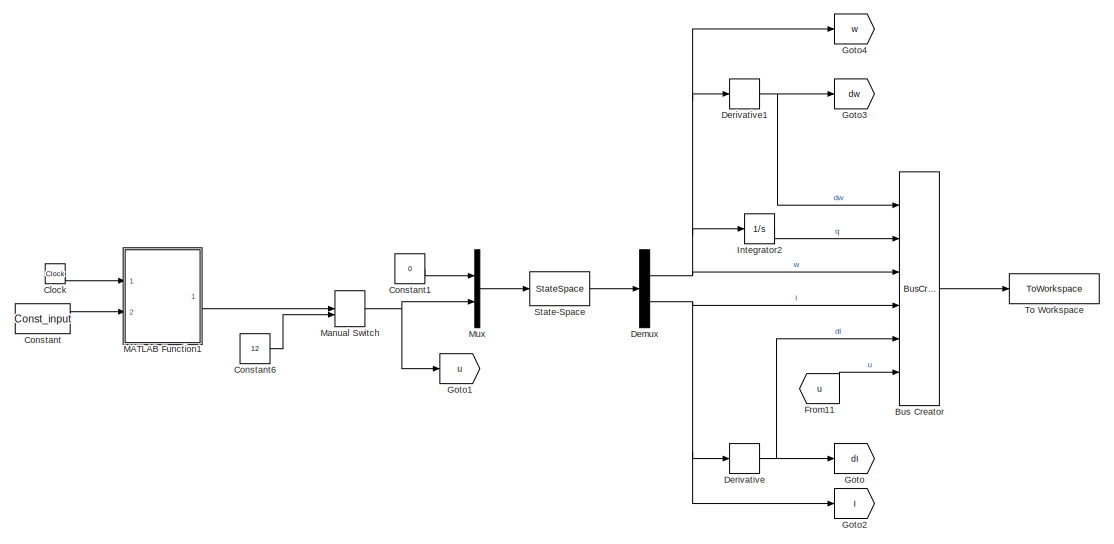
[diagram: root canvas - part 1/2, full width, top band]
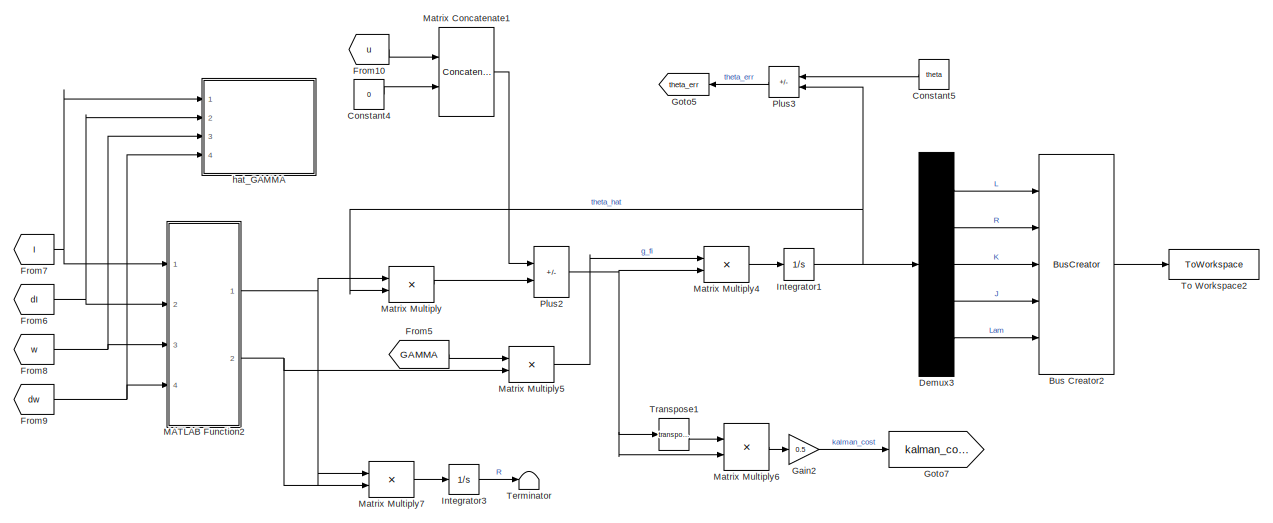
[diagram: root canvas - part 2/2, full width, bottom band]
MODEL slx_846c1dbf97cc
KIND model
CONFIG AbsTol = auto
CONFIG EnableMultiTasking = off
CONFIG FixedStep = auto
CONFIG MaxStep = auto
CONFIG MinStep = auto
CONFIG RelTol = 1e-3
CONFIG SampleTimeConstraint = Unconstrained
CONFIG SolverName = ode23t
CONFIG StartTime = 0.0
CONFIG StopTime = 20
BLOCK [BusCreator] Bus Creator
  DisplayOption = bar
  InheritFromInputs = on
  Inputs = 6
  Ports = [6, 1]
BLOCK [BusCreator] Bus Creator2
  DisplayOption = bar
  InheritFromInputs = on
  Inputs = 5
  Ports = [5, 1]
BLOCK [Clock] Clock
BLOCK [Constant] Constant
  Value = Const_input
BLOCK [Constant] Constant1
  Value = 0
BLOCK [Constant] Constant4
  Value = 0
BLOCK [Constant] Constant5
  NameLocation = top
  Value = theta
BLOCK [Constant] Constant6
  Value = 12
BLOCK [Demux] Demux
  Outputs = 2
  Ports = [1, 2]
BLOCK [Demux] Demux3
  Outputs = 5
  Ports = [1, 5]
BLOCK [Derivative] Derivative
BLOCK [Derivative] Derivative1
BLOCK [From] From10
  GotoTag = u
BLOCK [From] From11
  GotoTag = u
BLOCK [From] From5
  GotoTag = GAMMA
  TagVisibility = global
BLOCK [From] From6
  GotoTag = dI
BLOCK [From] From7
  GotoTag = I
BLOCK [From] From8
  GotoTag = w
BLOCK [From] From9
  GotoTag = dw
BLOCK [Gain] Gain2
  Gain = 0.5
BLOCK [Goto] Goto
  GotoTag = dI
BLOCK [Goto] Goto1
  GotoTag = u
BLOCK [Goto] Goto2
  GotoTag = I
BLOCK [Goto] Goto3
  GotoTag = dw
BLOCK [Goto] Goto4
  GotoTag = w
BLOCK [Goto] Goto5
  GotoTag = theta_err
  NameLocation = top
  TagVisibility = global
BLOCK [Goto] Goto7
  GotoTag = kalman_cost
  TagVisibility = global
BLOCK [Integrator] Integrator1
  InitialCondition = 1
  Ports = [1, 1]
BLOCK [Integrator] Integrator2
  Ports = [1, 1]
BLOCK [Integrator] Integrator3
  Ports = [1, 1]
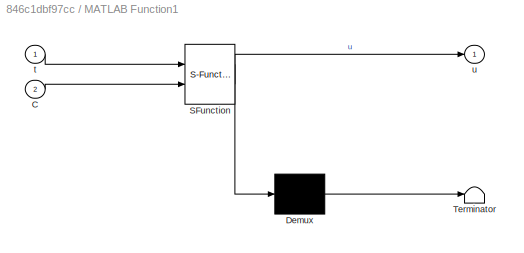
BLOCK [SubSystem] MATLAB Function1
  ErrorFcn = Stateflow.Translate.translate
  PermitHierarchicalResolution = ExplicitOnly
  Ports = [2, 1]
  RequestExecContextInheritance = off
  SFBlockType = MATLAB Function
  TreatAsAtomicUnit = on
BLOCK [Demux] MATLAB Function1/ Demux 
  Outputs = 1
  Ports = [1, 1]
BLOCK [S-Function] MATLAB Function1/ SFunction 
  EnableBusSupport = on
  FunctionName = sf_sfun
  PortCounts = [2 2]
  Ports = [2, 2]
  SFcnIsStateOwnerBlock = off
  SFunctionDeploymentMode = off
  Tag = Stateflow S-Function 2
BLOCK [Terminator] MATLAB Function1/ Terminator 
BLOCK [Inport] MATLAB Function1/C
  Port = 2
BLOCK [Inport] MATLAB Function1/t
BLOCK [Outport] MATLAB Function1/u
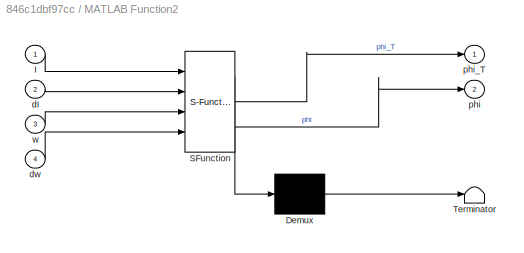
BLOCK [SubSystem] MATLAB Function2
  ErrorFcn = Stateflow.Translate.translate
  PermitHierarchicalResolution = ExplicitOnly
  Ports = [4, 2]
  RequestExecContextInheritance = off
  SFBlockType = MATLAB Function
  TreatAsAtomicUnit = on
BLOCK [Demux] MATLAB Function2/ Demux 
  Outputs = 1
  Ports = [1, 1]
BLOCK [S-Function] MATLAB Function2/ SFunction 
  EnableBusSupport = on
  FunctionName = sf_sfun
  PortCounts = [4 3]
  Ports = [4, 3]
  SFcnIsStateOwnerBlock = off
  SFunctionDeploymentMode = off
  Tag = Stateflow S-Function 1
BLOCK [Terminator] MATLAB Function2/ Terminator 
BLOCK [Inport] MATLAB Function2/I
BLOCK [Inport] MATLAB Function2/dI
  Port = 2
BLOCK [Inport] MATLAB Function2/dw
  Port = 4
BLOCK [Outport] MATLAB Function2/phi
  Port = 2
BLOCK [Outport] MATLAB Function2/phi_T
BLOCK [Inport] MATLAB Function2/w
  Port = 3
BLOCK [ManualSwitch] Manual Switch
BLOCK [Concatenate] Matrix Concatenate1
  ConcatenateDimension = 2
  Ports = [2, 1]
BLOCK [Product] Matrix Multiply
  Multiplication = Matrix(*)
  Ports = [2, 1]
BLOCK [Product] Matrix Multiply4
  Multiplication = Matrix(*)
  Ports = [2, 1]
BLOCK [Product] Matrix Multiply5
  Multiplication = Matrix(*)
  Ports = [2, 1]
BLOCK [Product] Matrix Multiply6
  Multiplication = Matrix(*)
  Ports = [2, 1]
BLOCK [Product] Matrix Multiply7
  Multiplication = Matrix(*)
  Ports = [2, 1]
BLOCK [Mux] Mux
  DisplayOption = bar
  Inputs = 2
  Ports = [2, 1]
BLOCK [Sum] Plus2
  IconShape = rectangular
  Inputs = +-
  Ports = [2, 1]
BLOCK [Sum] Plus3
  IconShape = rectangular
  Inputs = +-
  NameLocation = top
  Ports = [2, 1]
BLOCK [StateSpace] State-Space
  A = A
  B = B
  C = C
  D = D
  InitialCondition = [0;0]
  Ports = [1, 1]
BLOCK [Terminator] Terminator
BLOCK [ToWorkspace] To Workspace
  FixptAsFi = on
  MaxDataPoints = inf
  Ports = [1]
  SampleTime = -1
  SaveFormat = Timeseries
  VariableName = simout
BLOCK [ToWorkspace] To Workspace2
  FixptAsFi = on
  MaxDataPoints = inf
  Ports = [1]
  SampleTime = -1
  SaveFormat = Timeseries
  VariableName = est_kalman
BLOCK [Math] Transpose1
  Operator = transpose
  Ports = [1, 1]
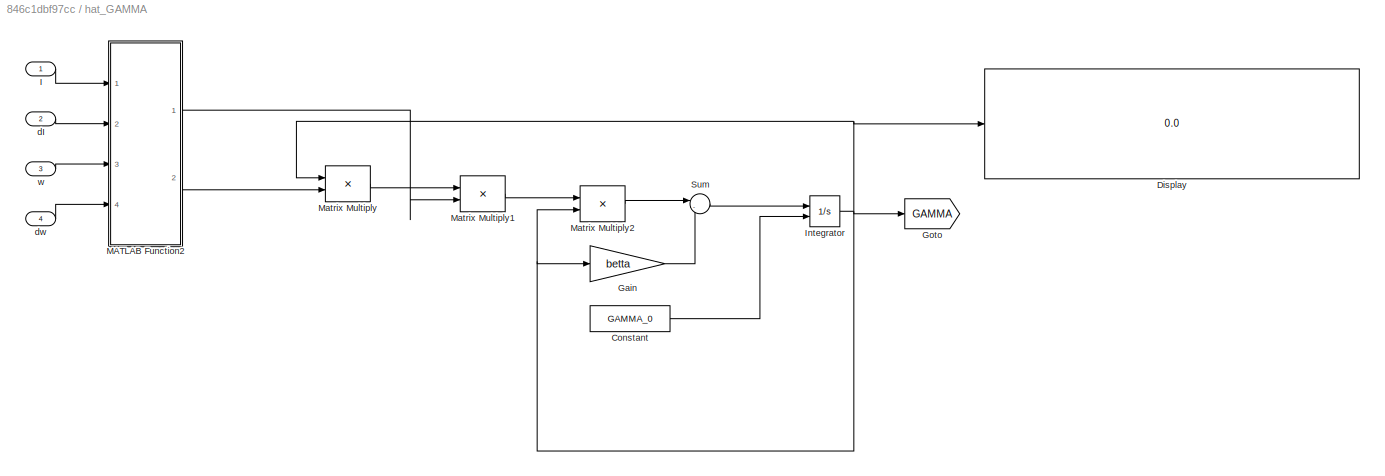
BLOCK [SubSystem] hat_GAMMA
  Ports = [4]
  RequestExecContextInheritance = off
BLOCK [Constant] hat_GAMMA/Constant
  Value = GAMMA_0
BLOCK [Display] hat_GAMMA/Display
  Decimation = 1
  Ports = [1]
BLOCK [Gain] hat_GAMMA/Gain
  Gain = betta
BLOCK [Goto] hat_GAMMA/Goto
  GotoTag = GAMMA
  TagVisibility = global
BLOCK [Inport] hat_GAMMA/I
BLOCK [Integrator] hat_GAMMA/Integrator
  InitialCondition = GAMMA_0
  InitialConditionSource = external
  Ports = [2, 1]
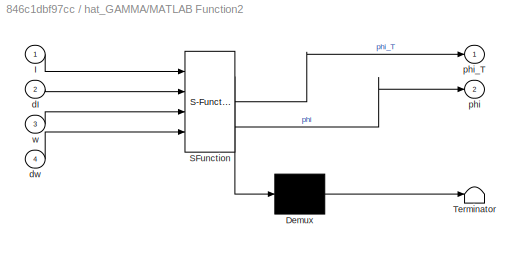
BLOCK [SubSystem] hat_GAMMA/MATLAB Function2
  ErrorFcn = Stateflow.Translate.translate
  PermitHierarchicalResolution = ExplicitOnly
  Ports = [4, 2]
  RequestExecContextInheritance = off
  SFBlockType = MATLAB Function
  TreatAsAtomicUnit = on
BLOCK [Demux] hat_GAMMA/MATLAB Function2/ Demux 
  Outputs = 1
  Ports = [1, 1]
BLOCK [S-Function] hat_GAMMA/MATLAB Function2/ SFunction 
  EnableBusSupport = on
  FunctionName = sf_sfun
  PortCounts = [4 3]
  Ports = [4, 3]
  SFcnIsStateOwnerBlock = off
  SFunctionDeploymentMode = off
  Tag = Stateflow S-Function 3
BLOCK [Terminator] hat_GAMMA/MATLAB Function2/ Terminator 
BLOCK [Inport] hat_GAMMA/MATLAB Function2/I
BLOCK [Inport] hat_GAMMA/MATLAB Function2/dI
  Port = 2
BLOCK [Inport] hat_GAMMA/MATLAB Function2/dw
  Port = 4
BLOCK [Outport] hat_GAMMA/MATLAB Function2/phi
  Port = 2
BLOCK [Outport] hat_GAMMA/MATLAB Function2/phi_T
BLOCK [Inport] hat_GAMMA/MATLAB Function2/w
  Port = 3
BLOCK [Product] hat_GAMMA/Matrix Multiply
  Multiplication = Matrix(*)
  Ports = [2, 1]
BLOCK [Product] hat_GAMMA/Matrix Multiply1
  Multiplication = Matrix(*)
  Ports = [2, 1]
BLOCK [Product] hat_GAMMA/Matrix Multiply2
  Multiplication = Matrix(*)
  Ports = [2, 1]
BLOCK [Sum] hat_GAMMA/Sum
  Inputs = |-+
  Ports = [2, 1]
BLOCK [Inport] hat_GAMMA/dI
  Port = 2
BLOCK [Inport] hat_GAMMA/dw
  Port = 4
BLOCK [Inport] hat_GAMMA/w
  Port = 3
LINE Bus Creator2:1 -> To Workspace2:1
LINE Bus Creator:1 -> To Workspace:1
LINE Clock:1 -> MATLAB Function1:1
LINE Constant1:1 -> Mux:1
LINE Constant4:1 -> Matrix Concatenate1:2
LINE Constant5:1 -> Plus3:1
LINE Constant6:1 -> Manual Switch:2
LINE Constant:1 -> MATLAB Function1:2
LINE Demux3:1 -> Bus Creator2:1
LINE Demux3:2 -> Bus Creator2:2
LINE Demux3:3 -> Bus Creator2:3
LINE Demux3:4 -> Bus Creator2:4
LINE Demux3:5 -> Bus Creator2:5
NET Demux:1 -> Bus Creator:3, Derivative1:1, Goto4:1, Integrator2:1
NET Demux:2 -> Bus Creator:4, Derivative:1, Goto2:1
NET Derivative1:1 -> Bus Creator:1, Goto3:1
NET Derivative:1 -> Bus Creator:5, Goto:1
LINE From10:1 -> Matrix Concatenate1:1
LINE From11:1 -> Bus Creator:6
LINE From5:1 -> Matrix Multiply5:1
NET From6:1 -> MATLAB Function2:2, hat_GAMMA:2
NET From7:1 -> MATLAB Function2:1, hat_GAMMA:1
NET From8:1 -> MATLAB Function2:3, hat_GAMMA:3
NET From9:1 -> MATLAB Function2:4, hat_GAMMA:4
LINE Gain2:1 -> Goto7:1
NET Integrator1:1 -> Demux3:1, Matrix Multiply:2, Plus3:2
LINE Integrator2:1 -> Bus Creator:2
LINE Integrator3:1 -> Terminator:1
LINE MATLAB Function1:1 -> Manual Switch:1
NET MATLAB Function2:1 -> Matrix Multiply7:1, Matrix Multiply:1
NET MATLAB Function2:2 -> Matrix Multiply5:2, Matrix Multiply7:2
NET Manual Switch:1 -> Goto1:1, Mux:2
LINE Matrix Concatenate1:1 -> Plus2:1
LINE Matrix Multiply4:1 -> Integrator1:1
LINE Matrix Multiply5:1 -> Matrix Multiply4:1
LINE Matrix Multiply6:1 -> Gain2:1
LINE Matrix Multiply7:1 -> Integrator3:1
LINE Matrix Multiply:1 -> Plus2:2
LINE Mux:1 -> State-Space:1
NET Plus2:1 -> Matrix Multiply4:2, Matrix Multiply6:2, Transpose1:1
LINE Plus3:1 -> Goto5:1
LINE State-Space:1 -> Demux:1
LINE Transpose1:1 -> Matrix Multiply6:1
LINE hat_GAMMA/Constant:1 -> hat_GAMMA/Integrator:2
LINE hat_GAMMA/Gain:1 -> hat_GAMMA/Sum:2
LINE hat_GAMMA/I:1 -> hat_GAMMA/MATLAB Function2:1
NET hat_GAMMA/Integrator:1 -> hat_GAMMA/Display:1, hat_GAMMA/Gain:1, hat_GAMMA/Goto:1, hat_GAMMA/Matrix Multiply2:2, hat_GAMMA/Matrix Multiply:1
LINE hat_GAMMA/MATLAB Function2:1 -> hat_GAMMA/Matrix Multiply1:2
LINE hat_GAMMA/MATLAB Function2:2 -> hat_GAMMA/Matrix Multiply:2
LINE hat_GAMMA/Matrix Multiply1:1 -> hat_GAMMA/Matrix Multiply2:1
LINE hat_GAMMA/Matrix Multiply2:1 -> hat_GAMMA/Sum:1
LINE hat_GAMMA/Matrix Multiply:1 -> hat_GAMMA/Matrix Multiply1:1
LINE hat_GAMMA/Sum:1 -> hat_GAMMA/Integrator:1
LINE hat_GAMMA/dI:1 -> hat_GAMMA/MATLAB Function2:2
LINE hat_GAMMA/dw:1 -> hat_GAMMA/MATLAB Function2:4
LINE hat_GAMMA/w:1 -> hat_GAMMA/MATLAB Function2:3
note: NET lines group one-source signal fan-out (src -> all destinations, sorted); 1:1 wires keep LINE
CHART MATLAB Function2 states=1 transitions=1
  STATE_LABEL 'eML_blk_kernel()'
  STATE_LABEL "SCRIPT:\nfunction [phi_T, phi]= fcn(I, dI, w, dw)\n\nphi = [dI 0;\n     I 0;\n     w -I;\n     0 dw;\n     0 w];\nphi_T = phi';"
CHART MATLAB Function1 states=1 transitions=1
  STATE_LABEL 'eML_blk_kernel()'
  STATE_LABEL 'SCRIPT:\nfunction u = fcn(t, C)\n\n% matlab tests\n% w = 6;\n% A = 6;\n% B = 6;\n% fi = 3.1415;\n% u = A * cos(w * t + fi) + B;\n\n%real tests\n% w = 1;\n% A = 6;\n% B = 6;\n% fi = 3.1415;\n% u = A * cos(w * t + fi) + B;\n\nw = C(3);\nA = C(1);\nB = C(2);\nfi = C(4);\nu = A * cos(w * t + fi) + B;\n'
CHART hat_GAMMA/MATLAB Function2 states=1 transitions=1
  STATE_LABEL 'eML_blk_kernel()'
  STATE_LABEL "SCRIPT:\nfunction [phi_T, phi]= fcn(I, dI, w, dw)\n\n% phi = zeros(5,2);\n% phi(1,1) = dI;\n% phi(2,1) = I;\n% phi(3,1) = w;\n% phi(2,2) = ddq(1)*c2 + dq(1)^2*s2;\n% \n% phi(3,2) = ddq(1);\n% phi(4,2) = ddq(2);\n% phi(5,1) = dq(1);\nphi = [dI 0;\n     I 0;\n     w -I;\n     0 dw;\n     0 w];\nphi_T = phi';"
CHART  states=0 transitions=0
CHART  states=0 transitions=0
CHART  states=0 transitions=0
